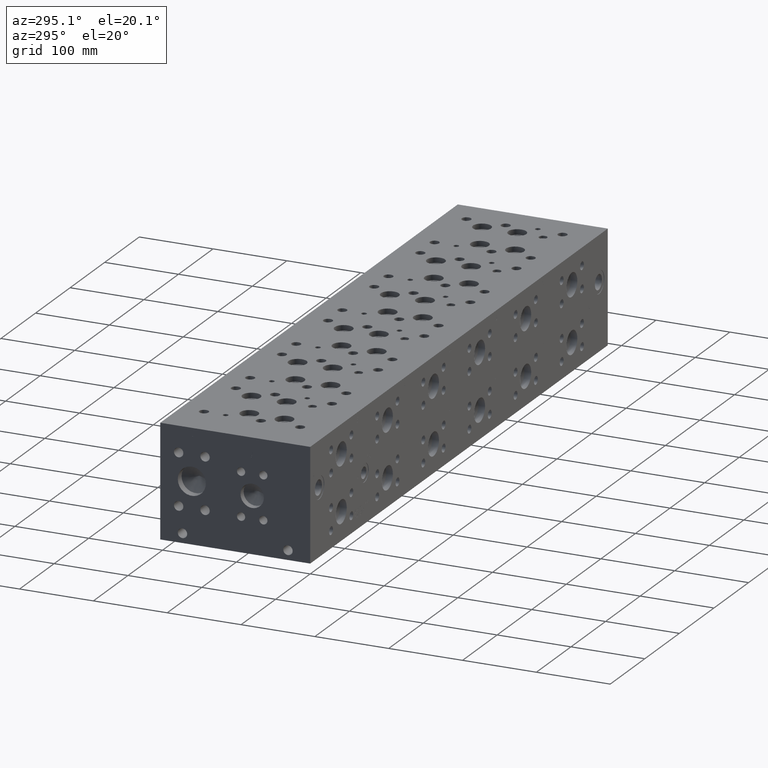
[diagram: clean part render]
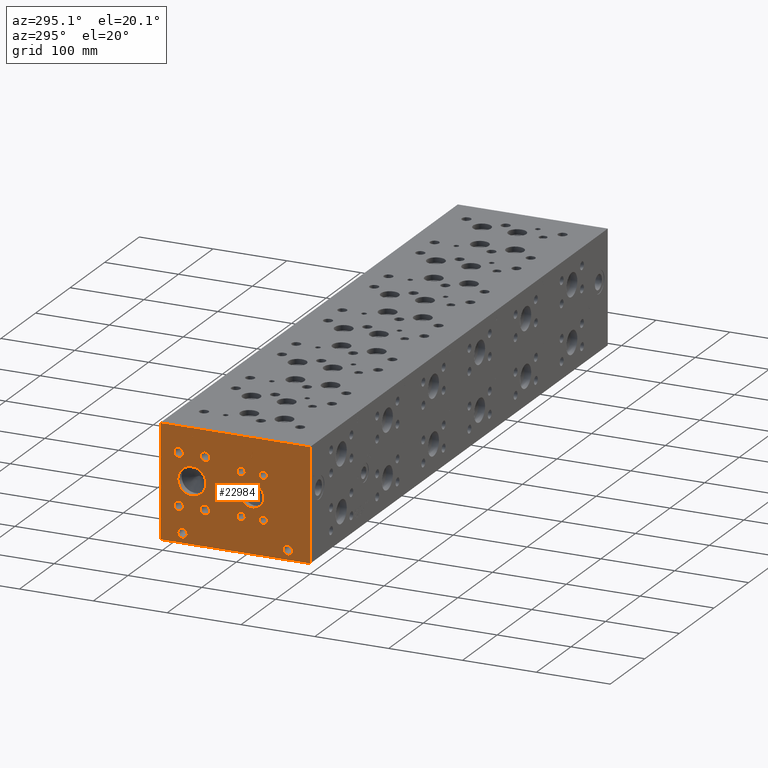
[diagram: same view with one face highlighted and labeled with its STEP entity id]
A machine part, auxiliary view. The second image highlights one B-rep face of the part: STEP entity #22984.
In plain terms, the highlighted planar face has unit normal (-1, 0, 0).
Its self-contained STEP definition (entity closure, byte-faithful):
#832=CIRCLE('',#24172,19.05);
#833=CIRCLE('',#24173,19.05);
#834=CIRCLE('',#24174,6.35);
#835=CIRCLE('',#24175,6.35);
#836=CIRCLE('',#24176,6.35);
#837=CIRCLE('',#24177,6.35);
#838=CIRCLE('',#24178,6.35);
#839=CIRCLE('',#24179,6.35);
#840=CIRCLE('',#24180,6.35);
#841=CIRCLE('',#24181,6.35);
#842=CIRCLE('',#24182,15.875);
#843=CIRCLE('',#24183,15.875);
#844=CIRCLE('',#24184,5.5626);
#845=CIRCLE('',#24185,5.5626);
#846=CIRCLE('',#24186,5.5626);
#847=CIRCLE('',#24187,5.5626);
#848=CIRCLE('',#24188,5.5626);
#849=CIRCLE('',#24189,5.5626);
#850=CIRCLE('',#24190,5.5626);
#851=CIRCLE('',#24191,5.5626);
#852=CIRCLE('',#24192,6.35);
#853=CIRCLE('',#24193,6.35);
#854=CIRCLE('',#24194,6.35);
#855=CIRCLE('',#24195,6.35);
#2117=B_SPLINE_CURVE_WITH_KNOTS('',2,(#38103,#38104,#38105,#38106),
 .UNSPECIFIED.,.F.,.F.,(3,1,3),(0.,1.,2.),.UNSPECIFIED.);
#2119=B_SPLINE_CURVE_WITH_KNOTS('',2,(#38124,#38125,#38126,#38127),
 .UNSPECIFIED.,.F.,.F.,(3,1,3),(0.,1.,2.),.UNSPECIFIED.);
#2121=B_SPLINE_CURVE_WITH_KNOTS('',2,(#38173,#38174,#38175,#38176),
 .UNSPECIFIED.,.F.,.F.,(3,1,3),(0.,1.,2.),.UNSPECIFIED.);
#2123=B_SPLINE_CURVE_WITH_KNOTS('',2,(#38191,#38192,#38193,#38194),
 .UNSPECIFIED.,.F.,.F.,(3,1,3),(0.,1.,2.),.UNSPECIFIED.);
#2268=FACE_BOUND('',#4505,.T.);
#2269=FACE_BOUND('',#4506,.T.);
#2270=FACE_BOUND('',#4507,.T.);
#2271=FACE_BOUND('',#4508,.T.);
#2272=FACE_BOUND('',#4509,.T.);
#2273=FACE_BOUND('',#4510,.T.);
#2274=FACE_BOUND('',#4511,.T.);
#2275=FACE_BOUND('',#4512,.T.);
#2276=FACE_BOUND('',#4513,.T.);
#2277=FACE_BOUND('',#4514,.T.);
#2278=FACE_BOUND('',#4515,.T.);
#2279=FACE_BOUND('',#4516,.T.);
#2280=FACE_BOUND('',#4517,.T.);
#2281=FACE_BOUND('',#4518,.T.);
#3125=FACE_OUTER_BOUND('',#4504,.T.);
#4504=EDGE_LOOP('',(#18238,#18239,#18240,#18241));
#4505=EDGE_LOOP('',(#18242,#18243));
#4506=EDGE_LOOP('',(#18244,#18245));
#4507=EDGE_LOOP('',(#18246,#18247));
#4508=EDGE_LOOP('',(#18248,#18249));
#4509=EDGE_LOOP('',(#18250,#18251));
#4510=EDGE_LOOP('',(#18252,#18253));
#4511=EDGE_LOOP('',(#18254,#18255));
#4512=EDGE_LOOP('',(#18256,#18257));
#4513=EDGE_LOOP('',(#18258,#18259));
#4514=EDGE_LOOP('',(#18260,#18261));
#4515=EDGE_LOOP('',(#18262,#18263));
#4516=EDGE_LOOP('',(#18264,#18265));
#4517=EDGE_LOOP('',(#18266,#18267,#18268,#18269,#18270,#18271,#18272,#18273));
#4518=EDGE_LOOP('',(#18274,#18275,#18276,#18277,#18278,#18279,#18280,#18281,
#18282));
#5323=LINE('',#31603,#7149);
#6613=LINE('',#38136,#8439);
#6616=LINE('',#38142,#8442);
#6619=LINE('',#38148,#8445);
#6622=LINE('',#38154,#8448);
#6625=LINE('',#38160,#8451);
#6629=LINE('',#38202,#8455);
#6630=LINE('',#38204,#8456);
#6631=LINE('',#38205,#8457);
#6632=LINE('',#38256,#8458);
#6633=LINE('',#38258,#8459);
#6634=LINE('',#38260,#8460);
#6635=LINE('',#38262,#8461);
#6636=LINE('',#38264,#8462);
#6637=LINE('',#38266,#8463);
#6638=LINE('',#38268,#8464);
#6639=LINE('',#38269,#8465);
#7149=VECTOR('',#25683,10.);
#8439=VECTOR('',#28121,10.);
#8442=VECTOR('',#28126,10.);
#8445=VECTOR('',#28131,10.);
#8448=VECTOR('',#28136,10.);
#8451=VECTOR('',#28141,10.);
#8455=VECTOR('',#28149,10.);
#8456=VECTOR('',#28150,10.);
#8457=VECTOR('',#28151,10.);
#8458=VECTOR('',#28200,10.);
#8459=VECTOR('',#28201,10.);
#8460=VECTOR('',#28202,10.);
#8461=VECTOR('',#28203,10.);
#8462=VECTOR('',#28204,10.);
#8463=VECTOR('',#28205,10.);
#8464=VECTOR('',#28206,10.);
#8465=VECTOR('',#28207,10.);
#8961=VERTEX_POINT('',#31596);
#8964=VERTEX_POINT('',#31601);
#10251=VERTEX_POINT('',#38101);
#10252=VERTEX_POINT('',#38102);
#10255=VERTEX_POINT('',#38123);
#10257=VERTEX_POINT('',#38135);
#10259=VERTEX_POINT('',#38141);
#10261=VERTEX_POINT('',#38147);
#10263=VERTEX_POINT('',#38153);
#10265=VERTEX_POINT('',#38159);
#10267=VERTEX_POINT('',#38172);
#10269=VERTEX_POINT('',#38201);
#10270=VERTEX_POINT('',#38203);
#10271=VERTEX_POINT('',#38206);
#10272=VERTEX_POINT('',#38207);
#10273=VERTEX_POINT('',#38210);
#10274=VERTEX_POINT('',#38211);
#10275=VERTEX_POINT('',#38214);
#10276=VERTEX_POINT('',#38215);
#10277=VERTEX_POINT('',#38218);
#10278=VERTEX_POINT('',#38219);
#10279=VERTEX_POINT('',#38222);
#10280=VERTEX_POINT('',#38223);
#10281=VERTEX_POINT('',#38226);
#10282=VERTEX_POINT('',#38227);
#10283=VERTEX_POINT('',#38230);
#10284=VERTEX_POINT('',#38231);
#10285=VERTEX_POINT('',#38234);
#10286=VERTEX_POINT('',#38235);
#10287=VERTEX_POINT('',#38238);
#10288=VERTEX_POINT('',#38239);
#10289=VERTEX_POINT('',#38242);
#10290=VERTEX_POINT('',#38243);
#10291=VERTEX_POINT('',#38246);
#10292=VERTEX_POINT('',#38247);
#10293=VERTEX_POINT('',#38250);
#10294=VERTEX_POINT('',#38251);
#10295=VERTEX_POINT('',#38254);
#10296=VERTEX_POINT('',#38255);
#10297=VERTEX_POINT('',#38257);
#10298=VERTEX_POINT('',#38259);
#10299=VERTEX_POINT('',#38261);
#10300=VERTEX_POINT('',#38263);
#10301=VERTEX_POINT('',#38265);
#10302=VERTEX_POINT('',#38267);
#11355=EDGE_CURVE('',#8961,#8964,#5323,.T.);
#13210=EDGE_CURVE('',#10251,#10252,#2117,.T.);
#13214=EDGE_CURVE('',#10255,#10251,#2119,.T.);
#13217=EDGE_CURVE('',#10257,#10255,#6613,.T.);
#13220=EDGE_CURVE('',#10259,#10257,#6616,.T.);
#13223=EDGE_CURVE('',#10261,#10259,#6619,.T.);
#13226=EDGE_CURVE('',#10263,#10261,#6622,.T.);
#13229=EDGE_CURVE('',#10265,#10263,#6625,.T.);
#13232=EDGE_CURVE('',#10267,#10265,#2121,.T.);
#13235=EDGE_CURVE('',#10252,#10267,#2123,.T.);
#13237=EDGE_CURVE('',#10269,#8961,#6629,.T.);
#13238=EDGE_CURVE('',#10270,#8964,#6630,.T.);
#13239=EDGE_CURVE('',#10269,#10270,#6631,.T.);
#13240=EDGE_CURVE('',#10271,#10272,#832,.T.);
#13241=EDGE_CURVE('',#10272,#10271,#833,.T.);
#13242=EDGE_CURVE('',#10273,#10274,#834,.T.);
#13243=EDGE_CURVE('',#10274,#10273,#835,.T.);
#13244=EDGE_CURVE('',#10275,#10276,#836,.T.);
#13245=EDGE_CURVE('',#10276,#10275,#837,.T.);
#13246=EDGE_CURVE('',#10277,#10278,#838,.T.);
#13247=EDGE_CURVE('',#10278,#10277,#839,.T.);
#13248=EDGE_CURVE('',#10279,#10280,#840,.T.);
#13249=EDGE_CURVE('',#10280,#10279,#841,.T.);
#13250=EDGE_CURVE('',#10281,#10282,#842,.T.);
#13251=EDGE_CURVE('',#10282,#10281,#843,.T.);
#13252=EDGE_CURVE('',#10283,#10284,#844,.T.);
#13253=EDGE_CURVE('',#10284,#10283,#845,.T.);
#13254=EDGE_CURVE('',#10285,#10286,#846,.T.);
#13255=EDGE_CURVE('',#10286,#10285,#847,.T.);
#13256=EDGE_CURVE('',#10287,#10288,#848,.T.);
#13257=EDGE_CURVE('',#10288,#10287,#849,.T.);
#13258=EDGE_CURVE('',#10289,#10290,#850,.T.);
#13259=EDGE_CURVE('',#10290,#10289,#851,.T.);
#13260=EDGE_CURVE('',#10291,#10292,#852,.T.);
#13261=EDGE_CURVE('',#10292,#10291,#853,.T.);
#13262=EDGE_CURVE('',#10293,#10294,#854,.T.);
#13263=EDGE_CURVE('',#10294,#10293,#855,.T.);
#13264=EDGE_CURVE('',#10295,#10296,#6632,.T.);
#13265=EDGE_CURVE('',#10296,#10297,#6633,.T.);
#13266=EDGE_CURVE('',#10297,#10298,#6634,.T.);
#13267=EDGE_CURVE('',#10298,#10299,#6635,.T.);
#13268=EDGE_CURVE('',#10299,#10300,#6636,.T.);
#13269=EDGE_CURVE('',#10300,#10301,#6637,.T.);
#13270=EDGE_CURVE('',#10301,#10302,#6638,.T.);
#13271=EDGE_CURVE('',#10302,#10295,#6639,.T.);
#18238=ORIENTED_EDGE('',*,*,#13237,.T.);
#18239=ORIENTED_EDGE('',*,*,#11355,.T.);
#18240=ORIENTED_EDGE('',*,*,#13238,.F.);
#18241=ORIENTED_EDGE('',*,*,#13239,.F.);
#18242=ORIENTED_EDGE('',*,*,#13240,.T.);
#18243=ORIENTED_EDGE('',*,*,#13241,.T.);
#18244=ORIENTED_EDGE('',*,*,#13242,.T.);
#18245=ORIENTED_EDGE('',*,*,#13243,.T.);
#18246=ORIENTED_EDGE('',*,*,#13244,.T.);
#18247=ORIENTED_EDGE('',*,*,#13245,.T.);
#18248=ORIENTED_EDGE('',*,*,#13246,.T.);
#18249=ORIENTED_EDGE('',*,*,#13247,.T.);
#18250=ORIENTED_EDGE('',*,*,#13248,.T.);
#18251=ORIENTED_EDGE('',*,*,#13249,.T.);
#18252=ORIENTED_EDGE('',*,*,#13250,.T.);
#18253=ORIENTED_EDGE('',*,*,#13251,.T.);
#18254=ORIENTED_EDGE('',*,*,#13252,.T.);
#18255=ORIENTED_EDGE('',*,*,#13253,.T.);
#18256=ORIENTED_EDGE('',*,*,#13254,.T.);
#18257=ORIENTED_EDGE('',*,*,#13255,.T.);
#18258=ORIENTED_EDGE('',*,*,#13256,.T.);
#18259=ORIENTED_EDGE('',*,*,#13257,.T.);
#18260=ORIENTED_EDGE('',*,*,#13258,.T.);
#18261=ORIENTED_EDGE('',*,*,#13259,.T.);
#18262=ORIENTED_EDGE('',*,*,#13260,.T.);
#18263=ORIENTED_EDGE('',*,*,#13261,.T.);
#18264=ORIENTED_EDGE('',*,*,#13262,.T.);
#18265=ORIENTED_EDGE('',*,*,#13263,.T.);
#18266=ORIENTED_EDGE('',*,*,#13264,.T.);
#18267=ORIENTED_EDGE('',*,*,#13265,.T.);
#18268=ORIENTED_EDGE('',*,*,#13266,.T.);
#18269=ORIENTED_EDGE('',*,*,#13267,.T.);
#18270=ORIENTED_EDGE('',*,*,#13268,.T.);
#18271=ORIENTED_EDGE('',*,*,#13269,.T.);
#18272=ORIENTED_EDGE('',*,*,#13270,.T.);
#18273=ORIENTED_EDGE('',*,*,#13271,.T.);
#18274=ORIENTED_EDGE('',*,*,#13210,.T.);
#18275=ORIENTED_EDGE('',*,*,#13235,.T.);
#18276=ORIENTED_EDGE('',*,*,#13232,.T.);
#18277=ORIENTED_EDGE('',*,*,#13229,.T.);
#18278=ORIENTED_EDGE('',*,*,#13226,.T.);
#18279=ORIENTED_EDGE('',*,*,#13223,.T.);
#18280=ORIENTED_EDGE('',*,*,#13220,.T.);
#18281=ORIENTED_EDGE('',*,*,#13217,.T.);
#18282=ORIENTED_EDGE('',*,*,#13214,.T.);
#21568=PLANE('',#24171);
#22984=ADVANCED_FACE('',(#3125,#2268,#2269,#2270,#2271,#2272,#2273,#2274,
#2275,#2276,#2277,#2278,#2279,#2280,#2281),#21568,.T.);
#24171=AXIS2_PLACEMENT_3D('',#38200,#28147,#28148);
#24172=AXIS2_PLACEMENT_3D('',#38208,#28152,#28153);
#24173=AXIS2_PLACEMENT_3D('',#38209,#28154,#28155);
#24174=AXIS2_PLACEMENT_3D('',#38212,#28156,#28157);
#24175=AXIS2_PLACEMENT_3D('',#38213,#28158,#28159);
#24176=AXIS2_PLACEMENT_3D('',#38216,#28160,#28161);
#24177=AXIS2_PLACEMENT_3D('',#38217,#28162,#28163);
#24178=AXIS2_PLACEMENT_3D('',#38220,#28164,#28165);
#24179=AXIS2_PLACEMENT_3D('',#38221,#28166,#28167);
#24180=AXIS2_PLACEMENT_3D('',#38224,#28168,#28169);
#24181=AXIS2_PLACEMENT_3D('',#38225,#28170,#28171);
#24182=AXIS2_PLACEMENT_3D('',#38228,#28172,#28173);
#24183=AXIS2_PLACEMENT_3D('',#38229,#28174,#28175);
#24184=AXIS2_PLACEMENT_3D('',#38232,#28176,#28177);
#24185=AXIS2_PLACEMENT_3D('',#38233,#28178,#28179);
#24186=AXIS2_PLACEMENT_3D('',#38236,#28180,#28181);
#24187=AXIS2_PLACEMENT_3D('',#38237,#28182,#28183);
#24188=AXIS2_PLACEMENT_3D('',#38240,#28184,#28185);
#24189=AXIS2_PLACEMENT_3D('',#38241,#28186,#28187);
#24190=AXIS2_PLACEMENT_3D('',#38244,#28188,#28189);
#24191=AXIS2_PLACEMENT_3D('',#38245,#28190,#28191);
#24192=AXIS2_PLACEMENT_3D('',#38248,#28192,#28193);
#24193=AXIS2_PLACEMENT_3D('',#38249,#28194,#28195);
#24194=AXIS2_PLACEMENT_3D('',#38252,#28196,#28197);
#24195=AXIS2_PLACEMENT_3D('',#38253,#28198,#28199);
#25683=DIRECTION('',(0.,0.,1.));
#28121=DIRECTION('',(0.,-1.,-1.11355060845355E-14));
#28126=DIRECTION('',(0.,-2.79741238752512E-15,1.));
#28131=DIRECTION('',(0.,1.,0.));
#28136=DIRECTION('',(0.,0.,-1.));
#28141=DIRECTION('',(0.,1.,0.));
#28147=DIRECTION('center_axis',(-1.,0.,0.));
#28148=DIRECTION('ref_axis',(0.,-1.,0.));
#28149=DIRECTION('',(0.,-1.,0.));
#28150=DIRECTION('',(0.,-1.,0.));
#28151=DIRECTION('',(0.,0.,1.));
#28152=DIRECTION('center_axis',(1.,0.,0.));
#28153=DIRECTION('ref_axis',(0.,1.,0.));
#28154=DIRECTION('center_axis',(1.,0.,0.));
#28155=DIRECTION('ref_axis',(0.,1.,0.));
#28156=DIRECTION('center_axis',(1.,0.,0.));
#28157=DIRECTION('ref_axis',(0.,1.,0.));
#28158=DIRECTION('center_axis',(1.,0.,0.));
#28159=DIRECTION('ref_axis',(0.,1.,0.));
#28160=DIRECTION('center_axis',(1.,0.,0.));
#28161=DIRECTION('ref_axis',(0.,1.,0.));
#28162=DIRECTION('center_axis',(1.,0.,0.));
#28163=DIRECTION('ref_axis',(0.,1.,0.));
#28164=DIRECTION('center_axis',(1.,0.,0.));
#28165=DIRECTION('ref_axis',(0.,1.,0.));
#28166=DIRECTION('center_axis',(1.,0.,0.));
#28167=DIRECTION('ref_axis',(0.,1.,0.));
#28168=DIRECTION('center_axis',(1.,0.,0.));
#28169=DIRECTION('ref_axis',(0.,1.,0.));
#28170=DIRECTION('center_axis',(1.,0.,0.));
#28171=DIRECTION('ref_axis',(0.,1.,0.));
#28172=DIRECTION('center_axis',(1.,0.,0.));
#28173=DIRECTION('ref_axis',(0.,1.,0.));
#28174=DIRECTION('center_axis',(1.,0.,0.));
#28175=DIRECTION('ref_axis',(0.,1.,0.));
#28176=DIRECTION('center_axis',(1.,0.,0.));
#28177=DIRECTION('ref_axis',(0.,1.,0.));
#28178=DIRECTION('center_axis',(1.,0.,0.));
#28179=DIRECTION('ref_axis',(0.,1.,0.));
#28180=DIRECTION('center_axis',(1.,0.,0.));
#28181=DIRECTION('ref_axis',(0.,1.,0.));
#28182=DIRECTION('center_axis',(1.,0.,0.));
#28183=DIRECTION('ref_axis',(0.,1.,0.));
#28184=DIRECTION('center_axis',(1.,0.,0.));
#28185=DIRECTION('ref_axis',(0.,1.,0.));
#28186=DIRECTION('center_axis',(1.,0.,0.));
#28187=DIRECTION('ref_axis',(0.,1.,0.));
#28188=DIRECTION('center_axis',(1.,0.,0.));
#28189=DIRECTION('ref_axis',(0.,1.,0.));
#28190=DIRECTION('center_axis',(1.,0.,0.));
#28191=DIRECTION('ref_axis',(0.,1.,0.));
#28192=DIRECTION('center_axis',(1.,0.,0.));
#28193=DIRECTION('ref_axis',(0.,1.,0.));
#28194=DIRECTION('center_axis',(1.,0.,0.));
#28195=DIRECTION('ref_axis',(0.,1.,0.));
#28196=DIRECTION('center_axis',(1.,0.,0.));
#28197=DIRECTION('ref_axis',(0.,1.,0.));
#28198=DIRECTION('center_axis',(1.,0.,0.));
#28199=DIRECTION('ref_axis',(0.,1.,0.));
#28200=DIRECTION('',(0.,1.,0.));
#28201=DIRECTION('',(0.,0.,1.));
#28202=DIRECTION('',(0.,1.,8.33818088455555E-15));
#28203=DIRECTION('',(0.,0.,1.));
#28204=DIRECTION('',(0.,-1.,-3.47984565141733E-15));
#28205=DIRECTION('',(0.,0.,-1.));
#28206=DIRECTION('',(0.,1.,8.33818088455555E-15));
#28207=DIRECTION('',(0.,0.,-1.));
#31596=CARTESIAN_POINT('',(0.,0.,0.));
#31601=CARTESIAN_POINT('',(0.,0.,152.4));
#31603=CARTESIAN_POINT('',(0.,0.,0.));
#38101=CARTESIAN_POINT('',(0.,77.0619327976406,132.160018143971));
#38102=CARTESIAN_POINT('',(0.,76.305490345468,130.641987372604));
#38103=CARTESIAN_POINT('Ctrl Pts',(0.,77.0619327976406,132.160018143971));
#38104=CARTESIAN_POINT('Ctrl Pts',(0.,76.7068679731514,131.918162393956));
#38105=CARTESIAN_POINT('Ctrl Pts',(0.,76.305490345468,131.172011675827));
#38106=CARTESIAN_POINT('Ctrl Pts',(0.,76.305490345468,130.641987372604));
#38123=CARTESIAN_POINT('',(0.,78.7240478456117,132.556249904633));
#38124=CARTESIAN_POINT('Ctrl Pts',(0.,78.7240478456117,132.556249904633));
#38125=CARTESIAN_POINT('Ctrl Pts',(0.,78.1580024732376,132.556249904633));
#38126=CARTESIAN_POINT('Ctrl Pts',(0.,77.3655389519139,132.370998691856));
#38127=CARTESIAN_POINT('Ctrl Pts',(0.,77.0619327976406,132.160018143971));
#38135=CARTESIAN_POINT('',(0.,80.3192666223022,132.556249904633));
#38136=CARTESIAN_POINT('',(0.,141.75963331115,132.556249904633));
#38141=CARTESIAN_POINT('',(0.,80.3192666223022,126.20625));
#38142=CARTESIAN_POINT('',(0.,80.3192666223024,63.1031249999998));
#38147=CARTESIAN_POINT('',(0.,79.4753444307627,126.20625));
#38148=CARTESIAN_POINT('',(0.,141.337672215381,126.20625));
#38153=CARTESIAN_POINT('',(0.,79.4753444307627,128.573348829928));
#38154=CARTESIAN_POINT('',(0.,79.4753444307627,64.2866744149639));
#38159=CARTESIAN_POINT('',(0.,78.7600689147628,128.573348829928));
#38160=CARTESIAN_POINT('',(0.,140.980034457381,128.573348829928));
#38172=CARTESIAN_POINT('',(0.,76.8612439837989,129.23201980869));
#38173=CARTESIAN_POINT('Ctrl Pts',(0.,76.8612439837989,129.23201980869));
#38174=CARTESIAN_POINT('Ctrl Pts',(0.,77.1905794731802,128.907830186331));
#38175=CARTESIAN_POINT('Ctrl Pts',(0.,78.0808144679139,128.573348829928));
#38176=CARTESIAN_POINT('Ctrl Pts',(0.,78.7600689147628,128.573348829928));
#38191=CARTESIAN_POINT('Ctrl Pts',(0.,76.305490345468,130.641987372604));
#38192=CARTESIAN_POINT('Ctrl Pts',(0.,76.305490345468,130.230318010877));
#38193=CARTESIAN_POINT('Ctrl Pts',(0.,76.5988047656982,129.48931315977));
#38194=CARTESIAN_POINT('Ctrl Pts',(0.,76.8612439837989,129.23201980869));
#38200=CARTESIAN_POINT('Origin',(0.,203.2,0.));
#38201=CARTESIAN_POINT('',(0.,203.2,0.));
#38202=CARTESIAN_POINT('',(0.,203.2,0.));
#38203=CARTESIAN_POINT('',(0.,203.2,152.4));
#38204=CARTESIAN_POINT('',(0.,203.2,152.4));
#38205=CARTESIAN_POINT('',(0.,203.2,0.));
#38206=CARTESIAN_POINT('',(0.,179.4002,82.55));
#38207=CARTESIAN_POINT('',(0.,141.3002,82.55));
#38208=CARTESIAN_POINT('Origin',(0.,160.3502,82.55));
#38209=CARTESIAN_POINT('Origin',(0.,160.3502,82.55));
#38210=CARTESIAN_POINT('',(0.,148.844,117.475));
#38211=CARTESIAN_POINT('',(2.22044604925031E-15,136.144,117.475));
#38212=CARTESIAN_POINT('Origin',(0.,142.494,117.475));
#38213=CARTESIAN_POINT('Origin',(0.,142.494,117.475));
#38214=CARTESIAN_POINT('',(0.,184.5564,117.475));
#38215=CARTESIAN_POINT('',(2.22044604925031E-15,171.8564,117.475));
#38216=CARTESIAN_POINT('Origin',(0.,178.2064,117.475));
#38217=CARTESIAN_POINT('Origin',(0.,178.2064,117.475));
#38218=CARTESIAN_POINT('',(0.,148.844,47.625));
#38219=CARTESIAN_POINT('',(2.22044604925031E-15,136.144,47.625));
#38220=CARTESIAN_POINT('Origin',(0.,142.494,47.625));
#38221=CARTESIAN_POINT('Origin',(0.,142.494,47.625));
#38222=CARTESIAN_POINT('',(0.,184.5564,47.625));
#38223=CARTESIAN_POINT('',(2.22044604925031E-15,171.8564,47.625));
#38224=CARTESIAN_POINT('Origin',(0.,178.2064,47.625));
#38225=CARTESIAN_POINT('Origin',(0.,178.2064,47.625));
#38226=CARTESIAN_POINT('',(0.,94.4626,76.2));
#38227=CARTESIAN_POINT('',(0.,62.7126,76.2));
#38228=CARTESIAN_POINT('Origin',(0.,78.5876,76.2));
#38229=CARTESIAN_POINT('Origin',(0.,78.5876,76.2));
#38230=CARTESIAN_POINT('',(0.,99.2378,46.8376));
#38231=CARTESIAN_POINT('',(0.,88.1126,46.8376));
#38232=CARTESIAN_POINT('Origin',(0.,93.6752,46.8376));
#38233=CARTESIAN_POINT('Origin',(0.,93.6752,46.8376));
#38234=CARTESIAN_POINT('',(0.,69.06768,105.5624));
#38235=CARTESIAN_POINT('',(0.,57.94248,105.5624));
#38236=CARTESIAN_POINT('Origin',(0.,63.50508,105.5624));
#38237=CARTESIAN_POINT('Origin',(0.,63.50508,105.5624));
#38238=CARTESIAN_POINT('',(0.,99.2378,105.56748));
#38239=CARTESIAN_POINT('',(0.,88.1126,105.56748));
#38240=CARTESIAN_POINT('Origin',(0.,93.6752,105.56748));
#38241=CARTESIAN_POINT('Origin',(0.,93.6752,105.56748));
#38242=CARTESIAN_POINT('',(0.,69.06768,46.83252));
#38243=CARTESIAN_POINT('',(0.,57.94248,46.83252));
#38244=CARTESIAN_POINT('Origin',(0.,63.50508,46.83252));
#38245=CARTESIAN_POINT('Origin',(0.,63.50508,46.83252));
#38246=CARTESIAN_POINT('',(0.,179.3748,12.7));
#38247=CARTESIAN_POINT('',(0.,166.6748,12.7));
#38248=CARTESIAN_POINT('Origin',(0.,173.0248,12.7));
#38249=CARTESIAN_POINT('Origin',(0.,173.0248,12.7));
#38250=CARTESIAN_POINT('',(0.,36.5252,12.7));
#38251=CARTESIAN_POINT('',(0.,23.8252,12.7));
#38252=CARTESIAN_POINT('Origin',(0.,30.1752,12.7));
#38253=CARTESIAN_POINT('Origin',(0.,30.1752,12.7));
#38254=CARTESIAN_POINT('',(0.,159.749584728547,135.73125));
#38255=CARTESIAN_POINT('',(0.,160.593506920087,135.73125));
#38256=CARTESIAN_POINT('',(0.,181.474792364274,135.73125));
#38257=CARTESIAN_POINT('',(0.,160.593506920087,141.329953319482));
#38258=CARTESIAN_POINT('',(0.,160.593506920087,67.865625));
#38259=CARTESIAN_POINT('',(0.,162.723895867022,141.329953319482));
#38260=CARTESIAN_POINT('',(0.,181.896753460043,141.329953319482));
#38261=CARTESIAN_POINT('',(0.,162.723895867022,142.081249904633));
#38262=CARTESIAN_POINT('',(0.,162.723895867022,70.6649766597408));
#38263=CARTESIAN_POINT('',(0.,157.619195781612,142.081249904633));
#38264=CARTESIAN_POINT('',(0.,182.961947933511,142.081249904633));
#38265=CARTESIAN_POINT('',(0.,157.619195781612,141.329953319482));
#38266=CARTESIAN_POINT('',(0.,157.619195781612,71.0406249523163));
#38267=CARTESIAN_POINT('',(0.,159.749584728547,141.329953319482));
#38268=CARTESIAN_POINT('',(0.,180.409597890805,141.329953319482));
#38269=CARTESIAN_POINT('',(0.,159.749584728547,70.6649766597408));